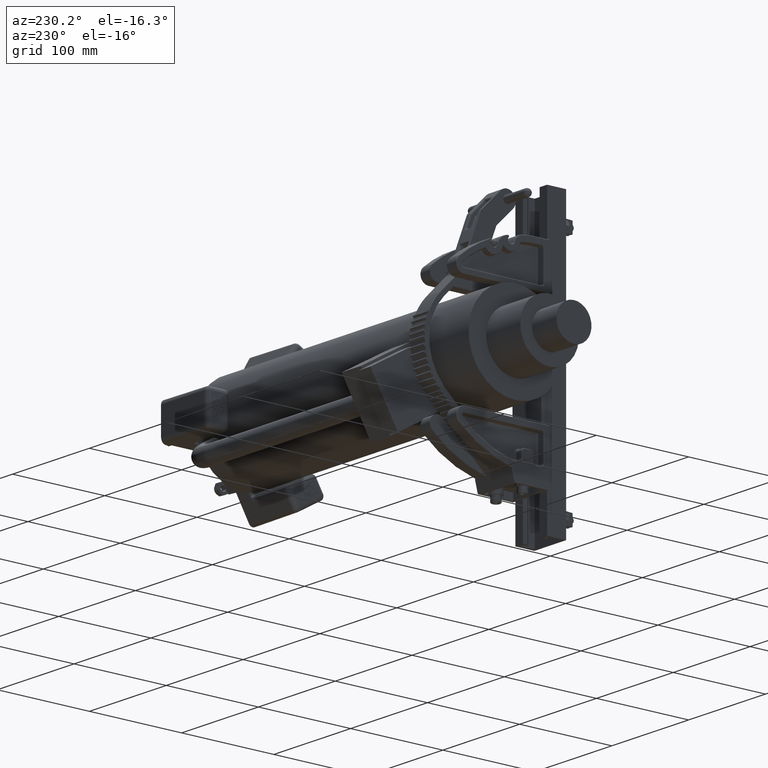
[diagram: clean part render]
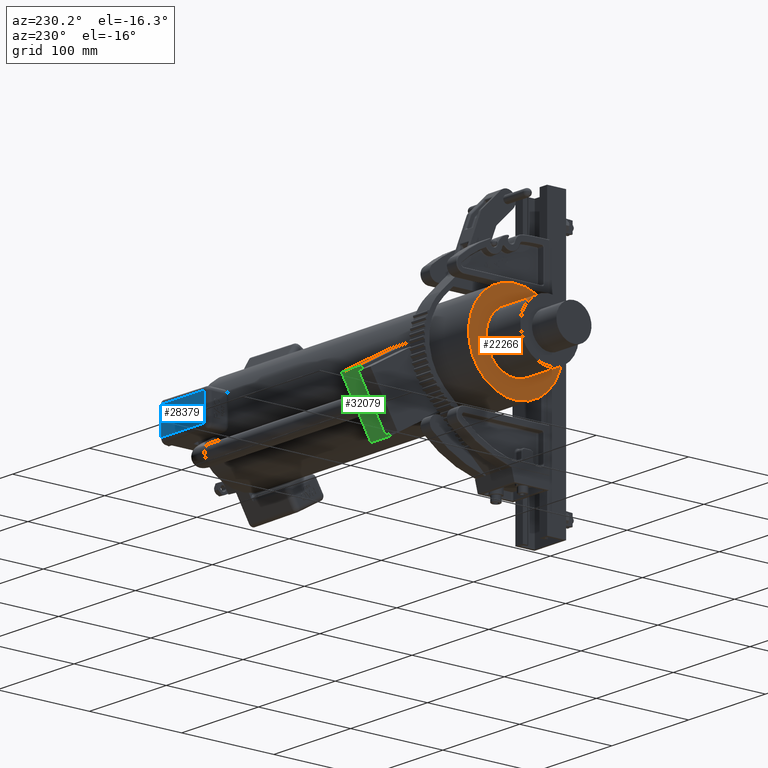
[diagram: same view with three faces highlighted in distinct colors, each labeled with its STEP entity id]
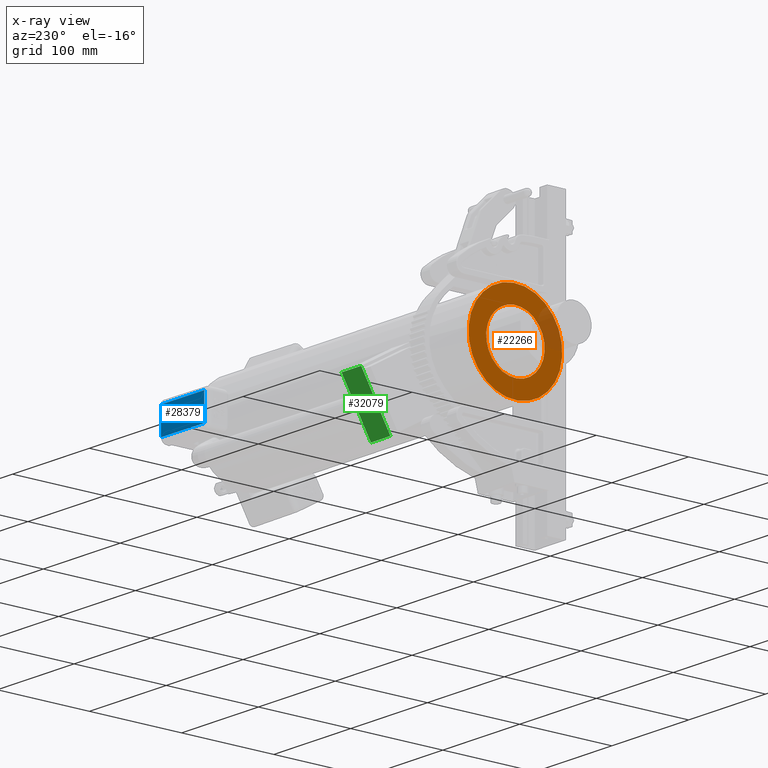
[diagram: x-ray of the same camera — body ghosted, the three highlighted faces saturated]
A machine part, auxiliary view with three faces highlighted in distinct colors.
The next image is the same camera in x-ray (body ghosted, the three faces saturated) — at least one of them is partly hidden behind the body in this view.
Their STEP definitions:

[orange] entity #22266 — the highlighted planar face has unit normal (1, 0, 0).
#380 = EDGE_CURVE ( 'NONE', #29091, #38229, #34295, .T. ) ;
#6763 = EDGE_CURVE ( 'NONE', #38229, #29091, #26445, .T. ) ;
#6900 = ORIENTED_EDGE ( 'NONE', *, *, #6763, .T. ) ;
#7545 = CARTESIAN_POINT ( 'NONE',  ( 2.449293598294706900E-016, 14.00000000000000200, 2.000000000000000000 ) ) ;
#8246 = VERTEX_POINT ( 'NONE', #11891 ) ;
#9697 = DIRECTION ( 'NONE',  ( -1.598521853841405800E-032, -1.000000000000000000, -3.659266894335748100E-033 ) ) ;
#10619 = EDGE_LOOP ( 'NONE', ( #15604, #21552 ) ) ;
#11063 = AXIS2_PLACEMENT_3D ( 'NONE', #37960, #12994, #42169 ) ;
#11188 = DIRECTION ( 'NONE',  ( 0.0000000000000000000, -5.440752092893935800E-033, -1.000000000000000000 ) ) ;
#11776 = DIRECTION ( 'NONE',  ( -1.598521853841405800E-032, -1.000000000000000000, -3.659266894335748100E-033 ) ) ;
#11891 = CARTESIAN_POINT ( 'NONE',  ( 0.0000000000000000000, 14.00000000000000200, -2.000000000000001800 ) ) ;
#12994 = DIRECTION ( 'NONE',  ( -1.598521853841405800E-032, -1.000000000000000000, -3.659266894335748100E-033 ) ) ;
#13811 = FACE_OUTER_BOUND ( 'NONE', #10619, .T. ) ;
#14454 = VERTEX_POINT ( 'NONE', #7545 ) ;
#14703 = AXIS2_PLACEMENT_3D ( 'NONE', #34650, #9697, #38847 ) ;
#14827 = DIRECTION ( 'NONE',  ( -1.598521853841405800E-032, -1.000000000000000000, -3.659266894335748100E-033 ) ) ;
#15218 = PLANE ( 'NONE',  #46197 ) ;
#15604 = ORIENTED_EDGE ( 'NONE', *, *, #34068, .F. ) ;
#21552 = ORIENTED_EDGE ( 'NONE', *, *, #51796, .F. ) ;
#22266 = ADVANCED_FACE ( 'NONE', ( #13811, #34679 ), #15218, .F. ) ;
#23219 = CARTESIAN_POINT ( 'NONE',  ( 1.530808498934193500E-016, 14.00000000000000200, 1.250000000000000000 ) ) ;
#25233 = AXIS2_PLACEMENT_3D ( 'NONE', #39793, #14827, #43992 ) ;
#26445 = CIRCLE ( 'NONE', #14703, 1.250000000000001100 ) ;
#29091 = VERTEX_POINT ( 'NONE', #23219 ) ;
#34068 = EDGE_CURVE ( 'NONE', #8246, #14454, #42390, .T. ) ;
#34295 = CIRCLE ( 'NONE', #11063, 1.250000000000001100 ) ;
#34650 = CARTESIAN_POINT ( 'NONE',  ( 0.0000000000000000000, 14.00000000000000200, 0.0000000000000000000 ) ) ;
#34679 = FACE_BOUND ( 'NONE', #47613, .T. ) ;
#36184 = DIRECTION ( 'NONE',  ( -1.598521853841405800E-032, -1.000000000000000000, 5.440752092893935800E-033 ) ) ;
#36752 = CARTESIAN_POINT ( 'NONE',  ( 0.0000000000000000000, 14.00000000000000200, 0.0000000000000000000 ) ) ;
#36767 = AXIS2_PLACEMENT_3D ( 'NONE', #36752, #11776, #40963 ) ;
#37960 = CARTESIAN_POINT ( 'NONE',  ( 0.0000000000000000000, 14.00000000000000200, 0.0000000000000000000 ) ) ;
#38229 = VERTEX_POINT ( 'NONE', #39059 ) ;
#38847 = DIRECTION ( 'NONE',  ( 0.0000000000000000000, 0.0000000000000000000, -1.000000000000000000 ) ) ;
#39059 = CARTESIAN_POINT ( 'NONE',  ( 0.0000000000000000000, 14.00000000000000200, -1.250000000000001100 ) ) ;
#39793 = CARTESIAN_POINT ( 'NONE',  ( 0.0000000000000000000, 14.00000000000000200, 0.0000000000000000000 ) ) ;
#40963 = DIRECTION ( 'NONE',  ( 0.0000000000000000000, 0.0000000000000000000, -1.000000000000000000 ) ) ;
#42169 = DIRECTION ( 'NONE',  ( 0.0000000000000000000, 0.0000000000000000000, -1.000000000000000000 ) ) ;
#42390 = CIRCLE ( 'NONE', #36767, 2.000000000000001800 ) ;
#43860 = ORIENTED_EDGE ( 'NONE', *, *, #380, .T. ) ;
#43992 = DIRECTION ( 'NONE',  ( 0.0000000000000000000, 0.0000000000000000000, -1.000000000000000000 ) ) ;
#46197 = AXIS2_PLACEMENT_3D ( 'NONE', #52763, #36184, #11188 ) ;
#47613 = EDGE_LOOP ( 'NONE', ( #6900, #43860 ) ) ;
#51493 = CIRCLE ( 'NONE', #25233, 2.000000000000001800 ) ;
#51796 = EDGE_CURVE ( 'NONE', #14454, #8246, #51493, .T. ) ;
#52763 = CARTESIAN_POINT ( 'NONE',  ( -2.000000000000001800, 14.00000000000000200, -2.731847993664263200E-016 ) ) ;

[blue] entity #28379 — the highlighted planar face has unit normal (-0.0087, 1, -0).
#516 = DIRECTION ( 'NONE',  ( -0.9999619230641713100, -1.388968770323407200E-016, 0.008726535498373886100 ) ) ;
#2556 = CARTESIAN_POINT ( 'NONE',  ( -0.9999999999999992200, 0.5625000000000016700, 0.0000000000000000000 ) ) ;
#6456 = VECTOR ( 'NONE', #48303, 39.37007874015748100 ) ;
#7874 = VECTOR ( 'NONE', #24929, 39.37007874015748100 ) ;
#8180 = CARTESIAN_POINT ( 'NONE',  ( -0.9808956975849194600, 0.5625000000000020000, 2.189136225405944500 ) ) ;
#8732 = CARTESIAN_POINT ( 'NONE',  ( -0.9999999999999992200, 0.5625000000000016700, 0.0000000000000000000 ) ) ;
#9200 = CARTESIAN_POINT ( 'NONE',  ( -0.9808956975849205700, -0.5624999999999995600, 2.189136225405922800 ) ) ;
#13558 = VECTOR ( 'NONE', #18396, 39.37007874015748100 ) ;
#14236 = ORIENTED_EDGE ( 'NONE', *, *, #37793, .T. ) ;
#14885 = CARTESIAN_POINT ( 'NONE',  ( -0.9999999999999992200, 0.5625000000000016700, 0.0000000000000000000 ) ) ;
#18396 = DIRECTION ( 'NONE',  ( -0.008726535498373884400, 2.609156741530605100E-017, -0.9999619230641712000 ) ) ;
#21593 = VERTEX_POINT ( 'NONE', #50789 ) ;
#22141 = LINE ( 'NONE', #14885, #52788 ) ;
#23292 = CARTESIAN_POINT ( 'NONE',  ( -0.9999999999999992200, 0.5625000000000016700, 0.0000000000000000000 ) ) ;
#24929 = DIRECTION ( 'NONE',  ( 3.053113317719178000E-016, 1.000000000000000000, -2.751511215188336800E-017 ) ) ;
#25476 = PLANE ( 'NONE',  #28556 ) ;
#26465 = EDGE_CURVE ( 'NONE', #33177, #21593, #28589, .T. ) ;
#28050 = EDGE_CURVE ( 'NONE', #42125, #21593, #48139, .T. ) ;
#28379 = ADVANCED_FACE ( 'NONE', ( #33750 ), #25476, .T. ) ;
#28556 = AXIS2_PLACEMENT_3D ( 'NONE', #8732, #516, #29659 ) ;
#28589 = LINE ( 'NONE', #2556, #6456 ) ;
#29659 = DIRECTION ( 'NONE',  ( 0.008726535498373884400, -2.609156741530604500E-017, 0.9999619230641712000 ) ) ;
#30013 = LINE ( 'NONE', #8180, #7874 ) ;
#33177 = VERTEX_POINT ( 'NONE', #23292 ) ;
#33750 = FACE_OUTER_BOUND ( 'NONE', #45228, .T. ) ;
#36483 = ORIENTED_EDGE ( 'NONE', *, *, #28050, .F. ) ;
#37793 = EDGE_CURVE ( 'NONE', #52336, #33177, #22141, .T. ) ;
#42125 = VERTEX_POINT ( 'NONE', #9200 ) ;
#42362 = ORIENTED_EDGE ( 'NONE', *, *, #26465, .T. ) ;
#42944 = ORIENTED_EDGE ( 'NONE', *, *, #45255, .T. ) ;
#45228 = EDGE_LOOP ( 'NONE', ( #36483, #42944, #14236, #42362 ) ) ;
#45255 = EDGE_CURVE ( 'NONE', #42125, #52336, #30013, .T. ) ;
#47388 = CARTESIAN_POINT ( 'NONE',  ( -0.9999999999999992200, -0.5625000000000006700, 0.0000000000000000000 ) ) ;
#47942 = CARTESIAN_POINT ( 'NONE',  ( -0.9808956975849194600, 0.5625000000000020000, 2.189136225405944500 ) ) ;
#48139 = LINE ( 'NONE', #47388, #13558 ) ;
#48241 = DIRECTION ( 'NONE',  ( -0.008726535498373884400, 2.869365262927125800E-017, -0.9999619230641712000 ) ) ;
#48303 = DIRECTION ( 'NONE',  ( -1.387778780781445200E-016, -1.000000000000000000, 2.751511215188331900E-017 ) ) ;
#50789 = CARTESIAN_POINT ( 'NONE',  ( -0.9999999999999992200, -0.5625000000000006700, 0.0000000000000000000 ) ) ;
#52336 = VERTEX_POINT ( 'NONE', #47942 ) ;
#52788 = VECTOR ( 'NONE', #48241, 39.37007874015748100 ) ;

[green] entity #32079 — the highlighted planar face has unit normal (-0, 0.866, -0.5).
#1959 = EDGE_LOOP ( 'NONE', ( #29872, #14958, #18051, #37274, #3638, #22728 ) ) ;
#2639 = LINE ( 'NONE', #30922, #23493 ) ;
#3291 = CARTESIAN_POINT ( 'NONE',  ( 4.000000000000003600, 11.00000000000000200, 1.250000000000000200 ) ) ;
#3638 = ORIENTED_EDGE ( 'NONE', *, *, #23456, .T. ) ;
#6705 = LINE ( 'NONE', #40237, #16465 ) ;
#6902 = DIRECTION ( 'NONE',  ( 0.0000000000000000000, 5.440752092893936500E-033, 1.000000000000000000 ) ) ;
#7161 = VECTOR ( 'NONE', #52350, 39.37007874015748100 ) ;
#7217 = VECTOR ( 'NONE', #17715, 39.37007874015748100 ) ;
#10844 = DIRECTION ( 'NONE',  ( 0.0000000000000000000, -5.440752092893935800E-033, -1.000000000000000000 ) ) ;
#12058 = EDGE_CURVE ( 'NONE', #26004, #28594, #6705, .T. ) ;
#14958 = ORIENTED_EDGE ( 'NONE', *, *, #51222, .T. ) ;
#16115 = VECTOR ( 'NONE', #52997, 39.37007874015748100 ) ;
#16465 = VECTOR ( 'NONE', #6902, 39.37007874015748100 ) ;
#17715 = DIRECTION ( 'NONE',  ( 0.0000000000000000000, -5.440752092893936500E-033, -1.000000000000000000 ) ) ;
#18051 = ORIENTED_EDGE ( 'NONE', *, *, #39425, .T. ) ;
#22612 = CARTESIAN_POINT ( 'NONE',  ( 4.000000000000003600, 10.00000000000000200, 1.250000000000000200 ) ) ;
#22728 = ORIENTED_EDGE ( 'NONE', *, *, #24222, .T. ) ;
#23456 = EDGE_CURVE ( 'NONE', #28594, #23559, #2639, .T. ) ;
#23493 = VECTOR ( 'NONE', #35130, 39.37007874015748100 ) ;
#23559 = VERTEX_POINT ( 'NONE', #43021 ) ;
#24222 = EDGE_CURVE ( 'NONE', #23559, #38096, #40409, .T. ) ;
#26004 = VERTEX_POINT ( 'NONE', #43551 ) ;
#26561 = EDGE_CURVE ( 'NONE', #38096, #38744, #46876, .T. ) ;
#27189 = CARTESIAN_POINT ( 'NONE',  ( 4.000000000000003600, 11.00000000000000200, 1.250000000000000200 ) ) ;
#27418 = PLANE ( 'NONE',  #29012 ) ;
#28008 = CARTESIAN_POINT ( 'NONE',  ( 4.000000000000002700, 11.00000000000000200, -1.250000000000002000 ) ) ;
#28594 = VERTEX_POINT ( 'NONE', #51700 ) ;
#29012 = AXIS2_PLACEMENT_3D ( 'NONE', #44023, #35826, #10844 ) ;
#29872 = ORIENTED_EDGE ( 'NONE', *, *, #26561, .T. ) ;
#30922 = CARTESIAN_POINT ( 'NONE',  ( 4.000000000000003600, 11.00000000000000200, 1.250000000000000200 ) ) ;
#32079 = ADVANCED_FACE ( 'NONE', ( #33440 ), #27418, .T. ) ;
#33440 = FACE_OUTER_BOUND ( 'NONE', #1959, .T. ) ;
#35130 = DIRECTION ( 'NONE',  ( 0.0000000000000000000, 5.440752092893936500E-033, 1.000000000000000000 ) ) ;
#35783 = VECTOR ( 'NONE', #53220, 39.37007874015748100 ) ;
#35802 = CARTESIAN_POINT ( 'NONE',  ( 4.000000000000002700, 10.00000000000000200, -1.250000000000002000 ) ) ;
#35826 = DIRECTION ( 'NONE',  ( 1.000000000000000000, 2.113708113964989400E-032, -1.150016184482191000E-064 ) ) ;
#37274 = ORIENTED_EDGE ( 'NONE', *, *, #12058, .T. ) ;
#38096 = VERTEX_POINT ( 'NONE', #46749 ) ;
#38664 = CARTESIAN_POINT ( 'NONE',  ( 4.000000000000003600, 10.00000000000000200, 1.250000000000000200 ) ) ;
#38744 = VERTEX_POINT ( 'NONE', #22612 ) ;
#39425 = EDGE_CURVE ( 'NONE', #53461, #26004, #51995, .T. ) ;
#40237 = CARTESIAN_POINT ( 'NONE',  ( 4.000000000000003600, 11.00000000000000200, 1.250000000000000200 ) ) ;
#40409 = LINE ( 'NONE', #27189, #7161 ) ;
#43021 = CARTESIAN_POINT ( 'NONE',  ( 4.000000000000003600, 11.00000000000000200, 1.150000000000000400 ) ) ;
#43551 = CARTESIAN_POINT ( 'NONE',  ( 4.000000000000002700, 11.00000000000000200, -1.250000000000002000 ) ) ;
#44023 = CARTESIAN_POINT ( 'NONE',  ( 4.000000000000003600, 10.00000000000000200, 1.250000000000000200 ) ) ;
#46749 = CARTESIAN_POINT ( 'NONE',  ( 4.000000000000003600, 11.00000000000000200, 1.250000000000000200 ) ) ;
#46876 = LINE ( 'NONE', #3291, #35783 ) ;
#51222 = EDGE_CURVE ( 'NONE', #38744, #53461, #51534, .T. ) ;
#51534 = LINE ( 'NONE', #38664, #7217 ) ;
#51700 = CARTESIAN_POINT ( 'NONE',  ( 4.000000000000002700, 11.00000000000000200, -1.150000000000003700 ) ) ;
#51995 = LINE ( 'NONE', #28008, #16115 ) ;
#52350 = DIRECTION ( 'NONE',  ( 0.0000000000000000000, 5.440752092893936500E-033, 1.000000000000000000 ) ) ;
#52997 = DIRECTION ( 'NONE',  ( 1.598521853841405800E-032, 1.000000000000000000, 3.659266894335748100E-033 ) ) ;
#53220 = DIRECTION ( 'NONE',  ( -1.598521853841405800E-032, -1.000000000000000000, -3.659266894335748100E-033 ) ) ;
#53461 = VERTEX_POINT ( 'NONE', #35802 ) ;